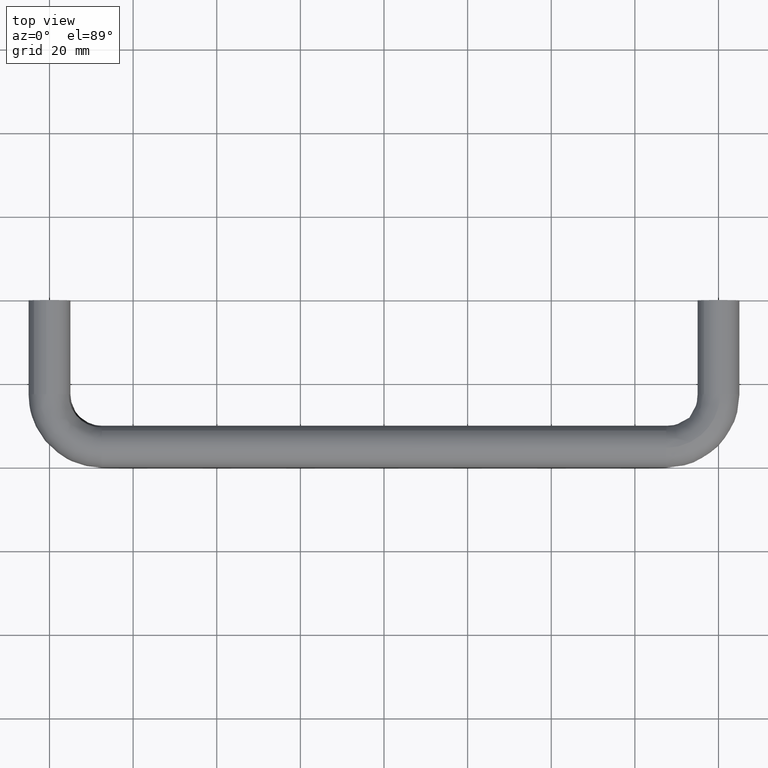
[diagram: clean part render]
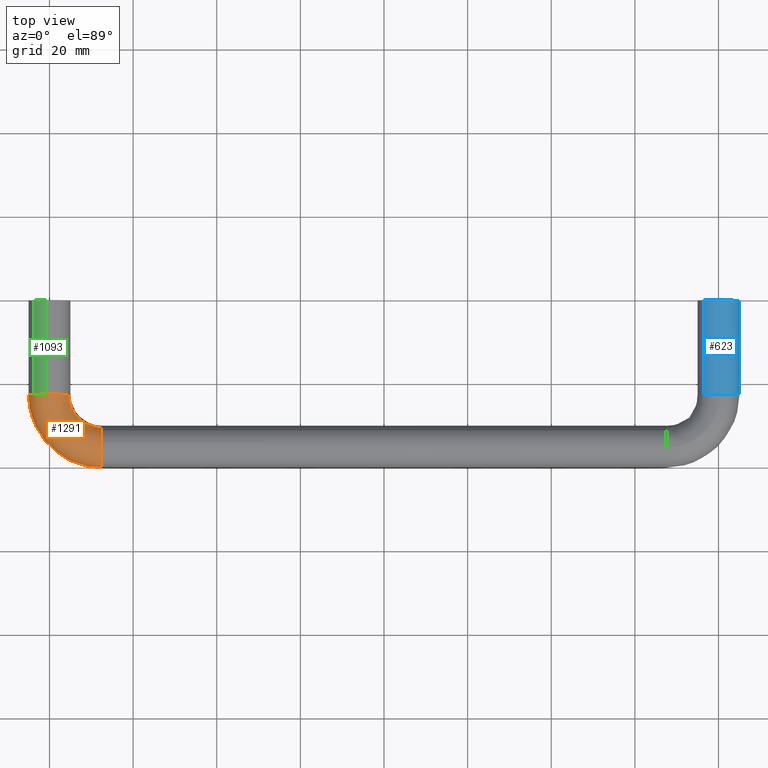
[diagram: same view with three faces highlighted in distinct colors, each labeled with its STEP entity id]
A machine part, top view with three faces highlighted in distinct colors.
Their STEP definitions:

[orange] entity #1291 — the highlighted face is a freeform B-spline surface patch.
#669=CARTESIAN_POINT('',(12.500000000006970,-31.182216886848611,3.228704399729181));
#670=VERTEX_POINT('',#669);
#676=CARTESIAN_POINT('',(12.500000000000000,-40.0,0.0));
#677=VERTEX_POINT('',#676);
#678=CARTESIAN_POINT('',(12.500000000006976,-31.182216886848611,3.228704399729182));
#679=CARTESIAN_POINT('',(12.500000000000004,-32.680203998306268,5.0));
#680=CARTESIAN_POINT('',(12.500000000000000,-35.0,5.0));
#681=CARTESIAN_POINT('',(12.500000000000000,-39.999999999999993,5.000000000000001));
#682=CARTESIAN_POINT('',(12.500000000000000,-40.0,0.0));
#690=(BOUNDED_CURVE()B_SPLINE_CURVE(2,(#678,#679,#680,#681,#682),.UNSPECIFIED.,.F.,.U.)B_SPLINE_CURVE_WITH_KNOTS((3,2,3),(0.612407860404824,0.750000000000000,1.0),.UNSPECIFIED.)CURVE()GEOMETRIC_REPRESENTATION_ITEM()RATIONAL_B_SPLINE_CURVE((0.855039525907895,0.838800781402156,1.0,0.707106781186548,1.0))REPRESENTATION_ITEM(''));
#691=EDGE_CURVE('',#670,#677,#690,.T.);
#693=CARTESIAN_POINT('',(12.500000000000000,-38.626872194420599,-3.441772520858758));
#694=VERTEX_POINT('',#693);
#695=CARTESIAN_POINT('',(12.500000000000000,-40.0,0.0));
#696=CARTESIAN_POINT('',(12.499999999999996,-40.0,-1.994797158397781));
#697=CARTESIAN_POINT('',(12.500000000000005,-38.626872194420599,-3.441772520858758));
#705=(BOUNDED_CURVE()B_SPLINE_CURVE(2,(#695,#696,#697),.UNSPECIFIED.,.F.,.U.)B_SPLINE_CURVE_WITH_KNOTS((3,3),(0.0,0.121049496898760),.UNSPECIFIED.)CURVE()GEOMETRIC_REPRESENTATION_ITEM()RATIONAL_B_SPLINE_CURVE((1.0,0.858181692870293,0.853699663573264))REPRESENTATION_ITEM(''));
#706=EDGE_CURVE('',#677,#694,#705,.T.);
#810=CARTESIAN_POINT('',(12.500000000970360,-33.191768631769513,-4.661576913336010));
#811=VERTEX_POINT('',#810);
#812=CARTESIAN_POINT('',(12.500000000000005,-38.626872194420599,-3.441772520858758));
#813=CARTESIAN_POINT('',(12.499999999999998,-37.148170113835420,-5.0));
#814=CARTESIAN_POINT('',(12.500000000000000,-35.0,-5.0));
#815=CARTESIAN_POINT('',(12.500000000000005,-34.064215197122188,-5.0));
#816=CARTESIAN_POINT('',(12.500000000970365,-33.191768631769520,-4.661576913336010));
#824=(BOUNDED_CURVE()B_SPLINE_CURVE(2,(#812,#813,#814,#815,#816),.UNSPECIFIED.,.F.,.U.)B_SPLINE_CURVE_WITH_KNOTS((3,2,3),(0.121049496898760,0.250000000000000,0.311409344367956),.UNSPECIFIED.)CURVE()GEOMETRIC_REPRESENTATION_ITEM()RATIONAL_B_SPLINE_CURVE((0.853699663573264,0.848925088316254,1.0,0.928054477851383,0.891453974465620))REPRESENTATION_ITEM(''));
#825=EDGE_CURVE('',#694,#811,#824,.T.);
#842=CARTESIAN_POINT('',(12.500000000011530,-30.449470146599229,2.071877905019577));
#843=VERTEX_POINT('',#842);
#857=CARTESIAN_POINT('',(12.500000000011521,-30.449470146599221,2.071877905019577));
#858=CARTESIAN_POINT('',(12.500000000009047,-30.735884297693200,2.700938209100045));
#859=CARTESIAN_POINT('',(12.500000000006976,-31.182216886848611,3.228704399729182));
#867=(BOUNDED_CURVE()B_SPLINE_CURVE(2,(#857,#858,#859),.UNSPECIFIED.,.F.,.U.)B_SPLINE_CURVE_WITH_KNOTS((3,3),(0.570375489961713,0.612407860404824),.UNSPECIFIED.)CURVE()GEOMETRIC_REPRESENTATION_ITEM()RATIONAL_B_SPLINE_CURVE((0.881519651448722,0.860000222984083,0.855039525907895))REPRESENTATION_ITEM(''));
#868=EDGE_CURVE('',#843,#670,#867,.T.);
#900=CARTESIAN_POINT('',(-3.704543296746590,-22.499999999999879,3.358029029433574));
#901=VERTEX_POINT('',#900);
#902=CARTESIAN_POINT('',(-4.999999999999997,-22.500000000000000,0.0));
#903=VERTEX_POINT('',#902);
#904=CARTESIAN_POINT('',(-3.704543296746589,-22.499999999999883,3.358029029433574));
#905=CARTESIAN_POINT('',(-4.999999999999996,-22.500000000000000,1.928894437626099));
#906=CARTESIAN_POINT('',(-4.999999999999997,-22.500000000000000,0.0));
#914=(BOUNDED_CURVE()B_SPLINE_CURVE(2,(#904,#905,#906),.UNSPECIFIED.,.F.,.U.)B_SPLINE_CURVE_WITH_KNOTS((3,3),(0.882398655225513,1.0),.UNSPECIFIED.)CURVE()GEOMETRIC_REPRESENTATION_ITEM()RATIONAL_B_SPLINE_CURVE((0.854066446716059,0.862221454368840,1.0))REPRESENTATION_ITEM(''));
#915=EDGE_CURVE('',#901,#903,#914,.T.);
#973=CARTESIAN_POINT('',(-0.739047056177648,-22.500000000000000,4.945079316730435));
#974=VERTEX_POINT('',#973);
#980=CARTESIAN_POINT('',(4.550529853313581,-22.500000000180162,2.071877905211092));
#981=VERTEX_POINT('',#980);
#982=CARTESIAN_POINT('',(4.550529853313581,-22.500000000180169,2.071877905211091));
#983=CARTESIAN_POINT('',(3.217341923912157,-22.499999999999989,5.000000000000001));
#984=CARTESIAN_POINT('',(2.755364E-015,-22.500000000000000,5.0));
#985=CARTESIAN_POINT('',(-0.371564184244270,-22.500000000000000,5.0));
#986=CARTESIAN_POINT('',(-0.739047056177648,-22.500000000000004,4.945079316730435));
#994=(BOUNDED_CURVE()B_SPLINE_CURVE(2,(#982,#983,#984,#985,#986),.UNSPECIFIED.,.F.,.U.)B_SPLINE_CURVE_WITH_KNOTS((3,2,3),(0.570375489974829,0.750000000000000,0.775488969647570),.UNSPECIFIED.)CURVE()GEOMETRIC_REPRESENTATION_ITEM()RATIONAL_B_SPLINE_CURVE((0.881519651435291,0.789556796323754,1.0,0.970137814542740,0.946364879795321))REPRESENTATION_ITEM(''));
#995=EDGE_CURVE('',#981,#974,#994,.T.);
#1012=CARTESIAN_POINT('',(1.808231368748996,-22.500000001453440,-4.661576913134882));
#1013=VERTEX_POINT('',#1012);
#1027=CARTESIAN_POINT('',(-4.999999999999997,-22.500000000000000,0.0));
#1028=CARTESIAN_POINT('',(-4.999999999999997,-22.500000000000000,-5.000000000000001));
#1029=CARTESIAN_POINT('',(2.755364E-015,-22.500000000000000,-5.0));
#1030=CARTESIAN_POINT('',(0.935784803453444,-22.500000000000004,-5.0));
#1031=CARTESIAN_POINT('',(1.808231368748997,-22.500000001453444,-4.661576913134882));
#1039=(BOUNDED_CURVE()B_SPLINE_CURVE(2,(#1027,#1028,#1029,#1030,#1031),.UNSPECIFIED.,.F.,.U.)B_SPLINE_CURVE_WITH_KNOTS((3,2,3),(0.0,0.250000000000000,0.311409344403013),.UNSPECIFIED.)CURVE()GEOMETRIC_REPRESENTATION_ITEM()RATIONAL_B_SPLINE_CURVE((1.0,0.707106781186548,1.0,0.928054477810311,0.891453974423832))REPRESENTATION_ITEM(''));
#1040=EDGE_CURVE('',#903,#1013,#1039,.T.);
#1063=CARTESIAN_POINT('',(-0.739047056177648,-22.499999999999996,4.945079316730435));
#1064=CARTESIAN_POINT('',(-2.505206609128753,-22.500000000000000,4.681125002612818));
#1065=CARTESIAN_POINT('',(-3.704543296746589,-22.499999999999883,3.358029029433574));
#1073=(BOUNDED_CURVE()B_SPLINE_CURVE(2,(#1063,#1064,#1065),.UNSPECIFIED.,.F.,.U.)B_SPLINE_CURVE_WITH_KNOTS((3,3),(0.775488969647571,0.882398655225513),.UNSPECIFIED.)CURVE()GEOMETRIC_REPRESENTATION_ITEM()RATIONAL_B_SPLINE_CURVE((0.946364879795319,0.846652846933537,0.854066446716059))REPRESENTATION_ITEM(''));
#1074=EDGE_CURVE('',#974,#901,#1073,.T.);
#1198=CARTESIAN_POINT('',(1.939530439591085,-21.710645529026635,-4.622073225194603));
#1199=CARTESIAN_POINT('',(1.248567444304619,-30.954773417595902,-4.622073225194603));
#1200=CARTESIAN_POINT('',(10.319929573897124,-32.863102371124235,-4.622073225194603));
#1201=CARTESIAN_POINT('',(11.803867543415816,-33.175276193756055,-4.622073225194603));
#1202=CARTESIAN_POINT('',(13.315779786482674,-33.058461116902180,-4.622073225194603));
#1203=CARTESIAN_POINT('',(1.888964564627269,-21.706865924412181,-4.641742506573117));
#1204=CARTESIAN_POINT('',(1.194693084976124,-30.995256751507902,-4.641742506573118));
#1205=CARTESIAN_POINT('',(10.309490912249732,-32.912723208127538,-4.641742506573118));
#1206=CARTESIAN_POINT('',(11.800534306521705,-33.226391788392249,-4.641742506573118));
#1207=CARTESIAN_POINT('',(13.319685921379923,-33.109017374992170,-4.641742506573118));
#1208=CARTESIAN_POINT('',(-2.551955849618482,-21.374924208736608,-6.369186425419473));
#1209=CARTESIAN_POINT('',(-3.536793165732038,-34.550683492075137,-6.369186425419474));
#1210=CARTESIAN_POINT('',(9.392721141323102,-37.270646178463913,-6.369186425419473));
#1211=CARTESIAN_POINT('',(11.507794592650107,-37.715591033309849,-6.369186425419474));
#1212=CARTESIAN_POINT('',(13.662740090192811,-37.549093192535196,-6.369186425419473));
#1213=CARTESIAN_POINT('',(-4.503097964847975,-21.229083842136362,-2.071877904966421));
#1214=CARTESIAN_POINT('',(-5.615596933926549,-36.112779229904746,-2.071877904966421));
#1215=CARTESIAN_POINT('',(8.989933443465191,-39.185322923193070,-2.071877904966421));
#1216=CARTESIAN_POINT('',(11.379177835028676,-39.687944710785679,-2.071877904966421));
#1217=CARTESIAN_POINT('',(13.813462772461270,-39.499864229690026,-2.071877904966421));
#1218=CARTESIAN_POINT('',(-6.569212231805586,-21.074649749519974,2.478651948458553));
#1219=CARTESIAN_POINT('',(-7.816895388891596,-37.766922341824518,2.478651948458555));
#1220=CARTESIAN_POINT('',(8.563411252896128,-41.212823077087073,2.478651948458555));
#1221=CARTESIAN_POINT('',(11.242982262283224,-41.776520443281647,2.478651948458554));
#1222=CARTESIAN_POINT('',(13.973066873955617,-41.565585552587741,2.478651948458554));
#1223=CARTESIAN_POINT('',(-2.031341235719911,-21.413838148195847,4.550529853424976));
#1224=CARTESIAN_POINT('',(-2.982115158065648,-34.133876400948843,4.550529853424976));
#1225=CARTESIAN_POINT('',(9.500195199807418,-36.759761457962398,4.550529853424976));
#1226=CARTESIAN_POINT('',(11.542112832765635,-37.189316632149804,4.550529853424976));
#1227=CARTESIAN_POINT('',(13.622523424055329,-37.028577591756715,4.550529853424976));
#1228=CARTESIAN_POINT('',(2.506529760365772,-21.753026546871745,6.622407758391395));
#1229=CARTESIAN_POINT('',(1.852665072760305,-30.500830460073182,6.622407758391395));
#1230=CARTESIAN_POINT('',(10.436979146718713,-32.306699838837723,6.622407758391395));
#1231=CARTESIAN_POINT('',(11.841243403248049,-32.602112821017961,6.622407758391396));
#1232=CARTESIAN_POINT('',(13.271979974155053,-32.491569630925703,6.622407758391396));
#1233=CARTESIAN_POINT('',(4.594384884626843,-21.909085684929273,2.023994580321393));
#1234=CARTESIAN_POINT('',(4.077126871765464,-28.829281491211763,2.023994580321393));
#1235=CARTESIAN_POINT('',(10.867989452117737,-30.257865147820837,2.023994580321394));
#1236=CARTESIAN_POINT('',(11.978872105109241,-30.491559878600068,2.023994580321394));
#1237=CARTESIAN_POINT('',(13.110696425375954,-30.404111585510741,2.023994580321394));
#1238=CARTESIAN_POINT('',(4.615937045143994,-21.910696626011582,1.976526852419047));
#1239=CARTESIAN_POINT('',(4.100089172740919,-28.812026706015917,1.976526852419048));
#1240=CARTESIAN_POINT('',(10.872438612971171,-30.236715780884033,1.976526852419048));
#1241=CARTESIAN_POINT('',(11.980292795577565,-30.469773416854522,1.976526852419047));
#1242=CARTESIAN_POINT('',(13.109031554623336,-30.382563523892468,1.976526852419047));
#1250=(BOUNDED_SURFACE()B_SPLINE_SURFACE(2,2,((#1198,#1203,#1208,#1213,#1218,#1223,#1228,#1233,#1238),(#1199,#1204,#1209,#1214,#1219,#1224,#1229,#1234,#1239),(#1200,#1205,#1210,#1215,#1220,#1225,#1230,#1235,#1240),(#1201,#1206,#1211,#1216,#1221,#1226,#1231,#1236,#1241),(#1202,#1207,#1212,#1217,#1222,#1227,#1232,#1237,#1242)),.UNSPECIFIED.,.F.,.F.,.U.)B_SPLINE_SURFACE_WITH_KNOTS((3,2,3),(3,1,2,2,1,3),(0.0,25.829988256707381,31.236719969226009),(0.0,0.126145870571941,8.079046268135382,16.363317515597299,24.647588763059218,24.771408161196099),.UNSPECIFIED.)GEOMETRIC_REPRESENTATION_ITEM()RATIONAL_B_SPLINE_SURFACE(((0.950217820183334,0.946262433313074,0.692938615511372,0.963991257828157,0.681644755414839,0.963991257828157,0.681644755414839,0.968211299996088,0.972431342164020),(0.728218373442587,0.725187083845807,0.531047324902716,0.738773922018271,0.522392050022901,0.738773922018271,0.522392050022901,0.742008035479538,0.745242148940804),(0.985712072041136,0.981608936418131,0.718822509939086,1.0,0.707106781186548,1.0,0.707106781186548,1.004377676803251,1.008755353606502),(0.931813505299629,0.927934728427520,0.679517418598343,0.945320171812547,0.668442303881085,0.945320171812547,0.668442303881085,0.949458478000337,0.953596784188126),(0.898923853634669,0.895181983578660,0.655532907673289,0.911953783596509,0.644848704509821,0.911953783596509,0.644848704509821,0.915946022520597,0.919938261444684)))REPRESENTATION_ITEM('')SURFACE());
#1251=ORIENTED_EDGE('',*,*,#825,.F.);
#1252=ORIENTED_EDGE('',*,*,#706,.F.);
#1253=ORIENTED_EDGE('',*,*,#691,.F.);
#1254=ORIENTED_EDGE('',*,*,#868,.F.);
#1255=CARTESIAN_POINT('',(4.550529853313580,-22.500000000180165,2.071877905211092));
#1256=CARTESIAN_POINT('',(4.550529853717391,-28.951149267289725,2.071877904966421));
#1257=CARTESIAN_POINT('',(10.863501337287770,-30.279199684943730,2.071877904966421));
#1258=CARTESIAN_POINT('',(11.672892723713217,-30.449470146577422,2.071877904966421));
#1259=CARTESIAN_POINT('',(12.500000000011529,-30.449470146599225,2.071877905019577));
#1267=(BOUNDED_CURVE()B_SPLINE_CURVE(2,(#1255,#1256,#1257,#1258,#1259),.UNSPECIFIED.,.F.,.U.)B_SPLINE_CURVE_WITH_KNOTS((3,2,3),(-3.759886875664528,-2.0,-1.712481691733748),.UNSPECIFIED.)CURVE()GEOMETRIC_REPRESENTATION_ITEM()RATIONAL_B_SPLINE_CURVE((0.940720929703471,0.753120240884011,1.0,0.959666469664758,0.930929567737911))REPRESENTATION_ITEM(''));
#1268=EDGE_CURVE('',#981,#843,#1267,.T.);
#1269=ORIENTED_EDGE('',*,*,#1268,.F.);
#1270=ORIENTED_EDGE('',*,*,#995,.T.);
#1271=ORIENTED_EDGE('',*,*,#1074,.T.);
#1272=ORIENTED_EDGE('',*,*,#915,.T.);
#1273=ORIENTED_EDGE('',*,*,#1040,.T.);
#1274=CARTESIAN_POINT('',(1.808231368748996,-22.500000001453440,-4.661576913134882));
#1275=CARTESIAN_POINT('',(1.808231369436670,-31.176577698113942,-4.661576913783186));
#1276=CARTESIAN_POINT('',(10.298964616862618,-32.962760617643838,-4.661576913783187));
#1277=CARTESIAN_POINT('',(11.387568672867300,-33.191768633124248,-4.661576913783187));
#1278=CARTESIAN_POINT('',(12.500000000970365,-33.191768631769506,-4.661576913336010));
#1286=(BOUNDED_CURVE()B_SPLINE_CURVE(2,(#1274,#1275,#1276,#1277,#1278),.UNSPECIFIED.,.F.,.U.)B_SPLINE_CURVE_WITH_KNOTS((3,2,3),(-3.759886875357680,-2.0,-1.712481691494341),.UNSPECIFIED.)CURVE()GEOMETRIC_REPRESENTATION_ITEM()RATIONAL_B_SPLINE_CURVE((0.919560165650581,0.736179404202421,0.977505800795127,0.938079540893053,0.909989052548728))REPRESENTATION_ITEM(''));
#1287=EDGE_CURVE('',#1013,#811,#1286,.T.);
#1288=ORIENTED_EDGE('',*,*,#1287,.T.);
#1289=EDGE_LOOP('',(#1251,#1252,#1253,#1254,#1269,#1270,#1271,#1272,#1273,#1288));
#1290=FACE_OUTER_BOUND('',#1289,.T.);
#1291=ADVANCED_FACE('',(#1290),#1250,.T.);

[blue] entity #623 — the highlighted face is a freeform B-spline surface patch.
#426=CARTESIAN_POINT('',(163.294846744962510,-22.499999999999972,-3.760848963626144));
#427=VERTEX_POINT('',#426);
#460=CARTESIAN_POINT('',(156.495454233629910,-22.500000000000000,3.566252791294635));
#461=VERTEX_POINT('',#460);
#475=CARTESIAN_POINT('',(156.495454226941400,2.256528E-014,3.566252784721851));
#476=VERTEX_POINT('',#475);
#477=CARTESIAN_POINT('',(156.495454233629910,-22.500000000000000,3.566252791294635));
#478=CARTESIAN_POINT('',(156.495454226941400,2.256528E-014,3.566252784721851));
#479=QUASI_UNIFORM_CURVE('',1,(#477,#478),.UNSPECIFIED.,.F.,.U.);
#480=EDGE_CURVE('',#461,#476,#479,.T.);
#497=CARTESIAN_POINT('',(163.294846758402000,2.222036E-014,-3.760848951851971));
#498=VERTEX_POINT('',#497);
#514=CARTESIAN_POINT('',(163.294846744962510,-22.499999999999972,-3.760848963626144));
#515=CARTESIAN_POINT('',(163.294846758402000,2.222036E-014,-3.760848951851971));
#516=QUASI_UNIFORM_CURVE('',1,(#514,#515),.UNSPECIFIED.,.F.,.U.);
#517=EDGE_CURVE('',#427,#498,#516,.T.);
#522=CARTESIAN_POINT('',(156.495453678500810,-23.062500001555389,3.566252245770907));
#523=CARTESIAN_POINT('',(160.061705924271680,-23.062500001555389,7.070798567270160));
#524=CARTESIAN_POINT('',(163.566252245770900,-23.062500001555389,3.504546321499253));
#525=CARTESIAN_POINT('',(167.070798567270200,-23.062500001555389,-0.061705924271653));
#526=CARTESIAN_POINT('',(163.504546321499300,-23.062500001555389,-3.566252245770907));
#527=CARTESIAN_POINT('',(163.402481714390890,-23.062500001555392,-3.666550855837281));
#528=CARTESIAN_POINT('',(163.294847860799680,-23.062500001555396,-3.760847986050986));
#529=CARTESIAN_POINT('',(156.495453678500810,0.576562500038908,3.566252245770907));
#530=CARTESIAN_POINT('',(160.061705924271680,0.576562500038908,7.070798567270160));
#531=CARTESIAN_POINT('',(163.566252245770900,0.576562500038907,3.504546321499253));
#532=CARTESIAN_POINT('',(167.070798567270200,0.576562500038907,-0.061705924271653));
#533=CARTESIAN_POINT('',(163.504546321499300,0.576562500038907,-3.566252245770907));
#534=CARTESIAN_POINT('',(163.402481714390890,0.576562500038907,-3.666550855837281));
#535=CARTESIAN_POINT('',(163.294847860799680,0.576562500038907,-3.760847986050986));
#543=(BOUNDED_SURFACE()B_SPLINE_SURFACE(2,1,((#522,#529),(#523,#530),(#524,#531),(#525,#532),(#526,#533),(#527,#534),(#528,#535)),.UNSPECIFIED.,.F.,.F.,.U.)B_SPLINE_SURFACE_WITH_KNOTS((3,2,2,3),(2,2),(0.0,8.284271247461916,16.568542494923829,16.899913344822309),(0.0,23.639062501594299),.UNSPECIFIED.)GEOMETRIC_REPRESENTATION_ITEM()RATIONAL_B_SPLINE_SURFACE(((1.0,1.0),(0.707106781186548,0.707106781186548),(1.0,1.0),(0.707106781186548,0.707106781186548),(1.0,1.0),(0.988284271247462,0.988284271247462),(0.977505800795127,0.977505800795127)))REPRESENTATION_ITEM('')SURFACE());
#544=CARTESIAN_POINT('',(165.0,-22.500000000000000,0.0));
#545=VERTEX_POINT('',#544);
#546=CARTESIAN_POINT('',(165.0,-22.500000000000000,0.0));
#547=CARTESIAN_POINT('',(165.0,-22.499999999999993,-2.266979173491211));
#548=CARTESIAN_POINT('',(163.294846744962570,-22.499999999999996,-3.760848963626326));
#556=(BOUNDED_CURVE()B_SPLINE_CURVE(2,(#546,#547,#548),.UNSPECIFIED.,.F.,.U.)B_SPLINE_CURVE_WITH_KNOTS((3,3),(0.0,0.134954764893290),.UNSPECIFIED.)CURVE()GEOMETRIC_REPRESENTATION_ITEM()RATIONAL_B_SPLINE_CURVE((1.0,0.841890658064766,0.854482188675951))REPRESENTATION_ITEM(''));
#557=EDGE_CURVE('',#545,#427,#556,.T.);
#558=ORIENTED_EDGE('',*,*,#557,.T.);
#559=ORIENTED_EDGE('',*,*,#517,.T.);
#560=CARTESIAN_POINT('',(165.0,2.081668E-014,0.0));
#561=VERTEX_POINT('',#560);
#562=CARTESIAN_POINT('',(165.0,2.081668E-014,0.0));
#563=CARTESIAN_POINT('',(164.999999999999940,2.081668E-014,-2.266979162720917));
#564=CARTESIAN_POINT('',(163.294846758402120,2.081668E-014,-3.760848951852134));
#572=(BOUNDED_CURVE()B_SPLINE_CURVE(2,(#562,#563,#564),.UNSPECIFIED.,.F.,.U.)B_SPLINE_CURVE_WITH_KNOTS((3,3),(0.0,0.134954764353501),.UNSPECIFIED.)CURVE()GEOMETRIC_REPRESENTATION_ITEM()RATIONAL_B_SPLINE_CURVE((1.0,0.841890658697168,0.854482188575224))REPRESENTATION_ITEM(''));
#573=EDGE_CURVE('',#561,#498,#572,.T.);
#574=ORIENTED_EDGE('',*,*,#573,.F.);
#575=CARTESIAN_POINT('',(156.495454226941430,2.256528E-014,3.566252784721851));
#576=CARTESIAN_POINT('',(157.954446890489920,2.081668E-014,5.000000000000001));
#577=CARTESIAN_POINT('',(160.0,2.081668E-014,5.0));
#578=CARTESIAN_POINT('',(165.000000000000090,2.081668E-014,5.000000000000001));
#579=CARTESIAN_POINT('',(165.0,2.081668E-014,0.0));
#587=(BOUNDED_CURVE()B_SPLINE_CURVE(2,(#575,#576,#577,#578,#579),.UNSPECIFIED.,.F.,.U.)B_SPLINE_CURVE_WITH_KNOTS((3,2,3),(0.626316804001080,0.750000000000000,1.0),.UNSPECIFIED.)CURVE()GEOMETRIC_REPRESENTATION_ITEM()RATIONAL_B_SPLINE_CURVE((0.853569642397052,0.855096122442965,1.0,0.707106781186548,1.0))REPRESENTATION_ITEM(''));
#588=EDGE_CURVE('',#476,#561,#587,.T.);
#589=ORIENTED_EDGE('',*,*,#588,.F.);
#590=ORIENTED_EDGE('',*,*,#480,.F.);
#591=CARTESIAN_POINT('',(160.348666263995000,-22.500000001517460,4.987828368774506));
#592=VERTEX_POINT('',#591);
#593=CARTESIAN_POINT('',(156.495454233629940,-22.499999999999996,3.566252791294634));
#594=CARTESIAN_POINT('',(157.954446901437000,-22.500000000000007,5.0));
#595=CARTESIAN_POINT('',(160.0,-22.500000000000000,5.0));
#596=CARTESIAN_POINT('',(160.174545585513780,-22.500000000000007,5.0));
#597=CARTESIAN_POINT('',(160.348666263995060,-22.500000001517456,4.987828368774506));
#605=(BOUNDED_CURVE()B_SPLINE_CURVE(2,(#593,#594,#595,#596,#597),.UNSPECIFIED.,.F.,.U.)B_SPLINE_CURVE_WITH_KNOTS((3,2,3),(0.626316804567074,0.750000000000000,0.762166313886754),.UNSPECIFIED.)CURVE()GEOMETRIC_REPRESENTATION_ITEM()RATIONAL_B_SPLINE_CURVE((0.853569642411023,0.855096123106068,1.0,0.985746276658456,0.972879875494737))REPRESENTATION_ITEM(''));
#606=EDGE_CURVE('',#461,#592,#605,.T.);
#607=ORIENTED_EDGE('',*,*,#606,.T.);
#608=CARTESIAN_POINT('',(160.348666263995090,-22.500000001517456,4.987828368774506));
#609=CARTESIAN_POINT('',(164.999999999999940,-22.500000000000004,4.662684224867201));
#610=CARTESIAN_POINT('',(165.0,-22.500000000000000,0.0));
#618=(BOUNDED_CURVE()B_SPLINE_CURVE(2,(#608,#609,#610),.UNSPECIFIED.,.F.,.U.)B_SPLINE_CURVE_WITH_KNOTS((3,3),(0.762166313886754,1.0),.UNSPECIFIED.)CURVE()GEOMETRIC_REPRESENTATION_ITEM()RATIONAL_B_SPLINE_CURVE((0.972879875494736,0.721360504528092,1.0))REPRESENTATION_ITEM(''));
#619=EDGE_CURVE('',#592,#545,#618,.T.);
#620=ORIENTED_EDGE('',*,*,#619,.T.);
#621=EDGE_LOOP('',(#558,#559,#574,#589,#590,#607,#620));
#622=FACE_OUTER_BOUND('',#621,.T.);
#623=ADVANCED_FACE('',(#622),#543,.T.);

[green] entity #1093 — the highlighted face is a freeform B-spline surface patch.
#900=CARTESIAN_POINT('',(-3.704543296746590,-22.499999999999879,3.358029029433574));
#901=VERTEX_POINT('',#900);
#917=CARTESIAN_POINT('',(-3.704543268906057,-4.216880E-016,3.358029060147010));
#918=VERTEX_POINT('',#917);
#919=CARTESIAN_POINT('',(-3.704543268906057,-4.216880E-016,3.358029060147010));
#920=CARTESIAN_POINT('',(-3.704543296746590,-22.499999999999879,3.358029029433574));
#921=QUASI_UNIFORM_CURVE('',1,(#919,#920),.UNSPECIFIED.,.F.,.U.);
#922=EDGE_CURVE('',#918,#901,#921,.T.);
#956=CARTESIAN_POINT('',(-0.739047055678354,-2.220446E-016,4.945079316805055));
#957=VERTEX_POINT('',#956);
#973=CARTESIAN_POINT('',(-0.739047056177648,-22.500000000000000,4.945079316730435));
#974=VERTEX_POINT('',#973);
#975=CARTESIAN_POINT('',(-0.739047055678354,-2.220446E-016,4.945079316805055));
#976=CARTESIAN_POINT('',(-0.739047056177648,-22.500000000000000,4.945079316730435));
#977=QUASI_UNIFORM_CURVE('',1,(#975,#976),.UNSPECIFIED.,.F.,.U.);
#978=EDGE_CURVE('',#957,#974,#977,.T.);
#1045=CARTESIAN_POINT('',(-0.723681367926417,0.562500000036337,4.947375734225998));
#1046=CARTESIAN_POINT('',(-0.731359264414388,0.562500000036337,4.946228264907619));
#1047=CARTESIAN_POINT('',(-2.505204735130822,0.562500000036337,4.681125283070431));
#1048=CARTESIAN_POINT('',(-3.710647788050354,0.562500000036337,3.351294626130947));
#1049=CARTESIAN_POINT('',(-3.716755640173847,0.562500000036337,3.344556515207995));
#1050=CARTESIAN_POINT('',(-0.723681367926414,-23.076562501490685,4.947375734225998));
#1051=CARTESIAN_POINT('',(-0.731359264414385,-23.076562501490695,4.946228264907619));
#1052=CARTESIAN_POINT('',(-2.505204735130819,-23.076562501490685,4.681125283070431));
#1053=CARTESIAN_POINT('',(-3.710647788050350,-23.076562501490685,3.351294626130947));
#1054=CARTESIAN_POINT('',(-3.716755640173844,-23.076562501490685,3.344556515207995));
#1062=(BOUNDED_SURFACE()B_SPLINE_SURFACE(2,1,((#1045,#1050),(#1046,#1051),(#1047,#1052),(#1048,#1053),(#1049,#1054)),.UNSPECIFIED.,.F.,.F.,.U.)B_SPLINE_SURFACE_WITH_KNOTS((3,1,1,3),(2,2),(0.0,0.018187070198992,3.655597837105340,3.673788268734079),(0.0,23.639062501527029),.UNSPECIFIED.)GEOMETRIC_REPRESENTATION_ITEM()RATIONAL_B_SPLINE_SURFACE(((1.001288731322361,1.001288731322361),(1.000644365661180,1.000644365661180),(0.871126983722081,0.871126983722081),(0.855584883597984,0.855584883597984),(0.855507545427237,0.855507545427237)))REPRESENTATION_ITEM('')SURFACE());
#1063=CARTESIAN_POINT('',(-0.739047056177648,-22.499999999999996,4.945079316730435));
#1064=CARTESIAN_POINT('',(-2.505206609128753,-22.500000000000000,4.681125002612818));
#1065=CARTESIAN_POINT('',(-3.704543296746589,-22.499999999999883,3.358029029433574));
#1073=(BOUNDED_CURVE()B_SPLINE_CURVE(2,(#1063,#1064,#1065),.UNSPECIFIED.,.F.,.U.)B_SPLINE_CURVE_WITH_KNOTS((3,3),(0.775488969647571,0.882398655225513),.UNSPECIFIED.)CURVE()GEOMETRIC_REPRESENTATION_ITEM()RATIONAL_B_SPLINE_CURVE((0.946364879795319,0.846652846933537,0.854066446716059))REPRESENTATION_ITEM(''));
#1074=EDGE_CURVE('',#974,#901,#1073,.T.);
#1075=ORIENTED_EDGE('',*,*,#1074,.F.);
#1076=ORIENTED_EDGE('',*,*,#978,.F.);
#1077=CARTESIAN_POINT('',(-0.739047055678354,-2.220446E-016,4.945079316805055));
#1078=CARTESIAN_POINT('',(-2.505206585632389,0.0,4.681125006488991));
#1079=CARTESIAN_POINT('',(-3.704543268906057,-4.216880E-016,3.358029060147009));
#1087=(BOUNDED_CURVE()B_SPLINE_CURVE(2,(#1077,#1078,#1079),.UNSPECIFIED.,.F.,.U.)B_SPLINE_CURVE_WITH_KNOTS((3,3),(0.775488969613788,0.882398653973784),.UNSPECIFIED.)CURVE()GEOMETRIC_REPRESENTATION_ITEM()RATIONAL_B_SPLINE_CURVE((0.946364879858337,0.846652848098651,0.854066446542458))REPRESENTATION_ITEM(''));
#1088=EDGE_CURVE('',#957,#918,#1087,.T.);
#1089=ORIENTED_EDGE('',*,*,#1088,.T.);
#1090=ORIENTED_EDGE('',*,*,#922,.T.);
#1091=EDGE_LOOP('',(#1075,#1076,#1089,#1090));
#1092=FACE_OUTER_BOUND('',#1091,.T.);
#1093=ADVANCED_FACE('',(#1092),#1062,.T.);